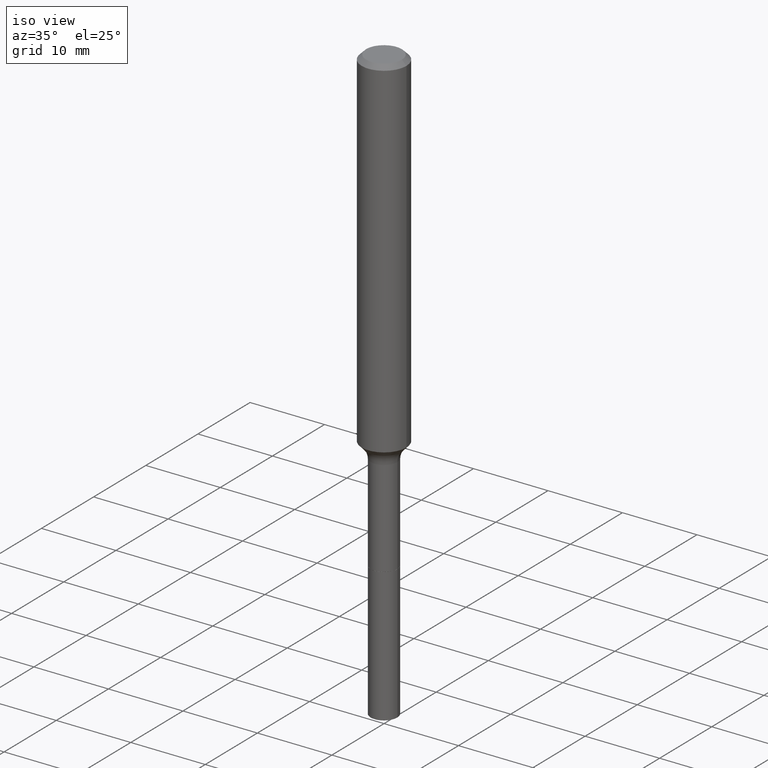
[diagram: clean part render]
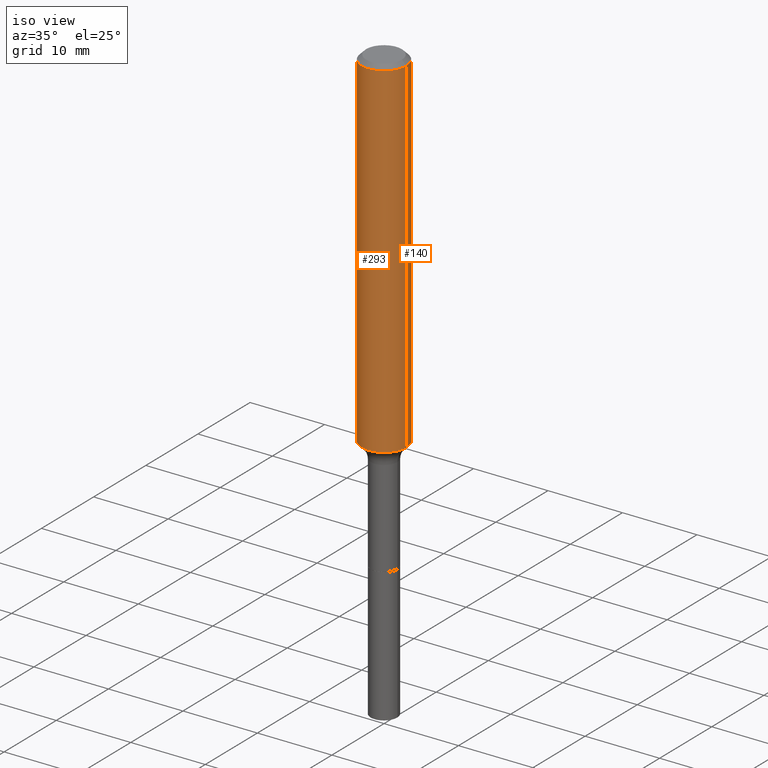
[diagram: same view with one multi-face feature highlighted, each face labeled with its STEP entity id]
A machine part, iso view. The highlighted faces form ONE feature: a constant-radius fillet chain: 2 tangent blend faces with common blend radius 2.9997 mm. The faces share edges in the B-rep.
Their STEP definitions:
[1] entity #293 (Cylinder):
#7 = EDGE_CURVE ( 'NONE', #45, #402, #39, .T. ) ;
#28 = DIRECTION ( 'NONE',  ( 1.000000000000000000, -6.982962677686266711E-15, 4.876176775795935793E-29 ) ) ;
#39 = CIRCLE ( 'NONE', #396, 0.1181000000000002187 ) ;
#45 = VERTEX_POINT ( 'NONE', #390 ) ;
#46 = CARTESIAN_POINT ( 'NONE',  ( 0.1181000000000001077, -8.246878922347488542E-16, 5.758764772215005345E-30 ) ) ;
#81 = CARTESIAN_POINT ( 'NONE',  ( -0.1180999999999999966, -2.426166063791637910E-15, -0.02362000000000014435 ) ) ;
#88 = ORIENTED_EDGE ( 'NONE', *, *, #7, .T. ) ;
#90 = CARTESIAN_POINT ( 'NONE',  ( 4.516360111820457687E-29, -6.448165280225159912E-15, -1.846827937611624559 ) ) ;
#91 = EDGE_LOOP ( 'NONE', ( #201, #88, #252, #487 ) ) ;
#110 = VECTOR ( 'NONE', #471, 39.37007874015748143 ) ;
#114 = CARTESIAN_POINT ( 'NONE',  ( -0.1181000000000001077, 8.391509709326790846E-16, -5.809262341591049389E-30 ) ) ;
#133 = CARTESIAN_POINT ( 'NONE',  ( 5.776197320209328408E-31, -8.246878922347560526E-17, -0.02362000000000014435 ) ) ;
#146 = DIRECTION ( 'NONE',  ( 1.000000000000000000, -6.982962677686266711E-15, 0.000000000000000000 ) ) ;
#148 = EDGE_CURVE ( 'NONE', #418, #463, #172, .T. ) ;
#172 = CIRCLE ( 'NONE', #213, 0.1180999999999999966 ) ;
#178 = CARTESIAN_POINT ( 'NONE',  ( 0.000000000000000000, 0.000000000000000000, 0.000000000000000000 ) ) ;
#201 = ORIENTED_EDGE ( 'NONE', *, *, #313, .F. ) ;
#207 = DIRECTION ( 'NONE',  ( 1.000000000000000000, -6.982962677686267499E-15, 0.000000000000000000 ) ) ;
#213 = AXIS2_PLACEMENT_3D ( 'NONE', #133, #301, #146 ) ;
#222 = FACE_OUTER_BOUND ( 'NONE', #91, .T. ) ;
#228 = DIRECTION ( 'NONE',  ( -2.445468806185136597E-29, 3.491481338843145583E-15, 1.000000000000000000 ) ) ;
#233 = LINE ( 'NONE', #114, #110 ) ;
#252 = ORIENTED_EDGE ( 'NONE', *, *, #386, .T. ) ;
#292 = VECTOR ( 'NONE', #339, 39.37007874015748143 ) ;
#293 = ADVANCED_FACE ( 'NONE', ( #222 ), #374, .T. ) ;
#301 = DIRECTION ( 'NONE',  ( -2.445468806185136597E-29, 3.491481338843145583E-15, 1.000000000000000000 ) ) ;
#313 = EDGE_CURVE ( 'NONE', #45, #418, #233, .T. ) ;
#337 = AXIS2_PLACEMENT_3D ( 'NONE', #178, #228, #28 ) ;
#339 = DIRECTION ( 'NONE',  ( -2.445468806185136877E-29, 3.491481338843145188E-15, 1.000000000000000000 ) ) ;
#359 = CARTESIAN_POINT ( 'NONE',  ( 0.1180999999999999966, -9.071566814582237199E-16, -0.02362000000000014435 ) ) ;
#374 = CYLINDRICAL_SURFACE ( 'NONE', #337, 0.1181000000000001077 ) ;
#386 = EDGE_CURVE ( 'NONE', #402, #463, #470, .T. ) ;
#390 = CARTESIAN_POINT ( 'NONE',  ( -0.1181000000000002187, -5.609014309292480926E-15, -1.846827937611624559 ) ) ;
#396 = AXIS2_PLACEMENT_3D ( 'NONE', #90, #435, #207 ) ;
#402 = VERTEX_POINT ( 'NONE', #506 ) ;
#418 = VERTEX_POINT ( 'NONE', #81 ) ;
#435 = DIRECTION ( 'NONE',  ( -2.445468806185136597E-29, 3.491481338843145583E-15, 1.000000000000000000 ) ) ;
#463 = VERTEX_POINT ( 'NONE', #359 ) ;
#470 = LINE ( 'NONE', #46, #292 ) ;
#471 = DIRECTION ( 'NONE',  ( -2.445468806185136877E-29, 3.491481338843145188E-15, 1.000000000000000000 ) ) ;
#487 = ORIENTED_EDGE ( 'NONE', *, *, #148, .F. ) ;
#506 = CARTESIAN_POINT ( 'NONE',  ( 0.1181000000000002187, -7.272853172459910541E-15, -1.846827937611624559 ) ) ;
[2] entity #140 (Cylinder):
#14 = EDGE_CURVE ( 'NONE', #402, #45, #245, .T. ) ;
#15 = ORIENTED_EDGE ( 'NONE', *, *, #386, .F. ) ;
#27 = AXIS2_PLACEMENT_3D ( 'NONE', #468, #108, #410 ) ;
#45 = VERTEX_POINT ( 'NONE', #390 ) ;
#46 = CARTESIAN_POINT ( 'NONE',  ( 0.1181000000000001077, -8.246878922347488542E-16, 5.758764772215005345E-30 ) ) ;
#81 = CARTESIAN_POINT ( 'NONE',  ( -0.1180999999999999966, -2.426166063791637910E-15, -0.02362000000000014435 ) ) ;
#84 = CYLINDRICAL_SURFACE ( 'NONE', #462, 0.1181000000000001077 ) ;
#108 = DIRECTION ( 'NONE',  ( -2.445468806185136597E-29, 3.491481338843145583E-15, 1.000000000000000000 ) ) ;
#110 = VECTOR ( 'NONE', #471, 39.37007874015748143 ) ;
#114 = CARTESIAN_POINT ( 'NONE',  ( -0.1181000000000001077, 8.391509709326790846E-16, -5.809262341591049389E-30 ) ) ;
#136 = DIRECTION ( 'NONE',  ( 1.000000000000000000, -6.982962677686266711E-15, 4.876176775795935793E-29 ) ) ;
#140 = ADVANCED_FACE ( 'NONE', ( #283 ), #84, .T. ) ;
#145 = CIRCLE ( 'NONE', #27, 0.1180999999999999966 ) ;
#162 = EDGE_LOOP ( 'NONE', ( #268, #395, #467, #15 ) ) ;
#233 = LINE ( 'NONE', #114, #110 ) ;
#241 = DIRECTION ( 'NONE',  ( 1.000000000000000000, -6.982962677686267499E-15, 0.000000000000000000 ) ) ;
#243 = CARTESIAN_POINT ( 'NONE',  ( 0.000000000000000000, 0.000000000000000000, 0.000000000000000000 ) ) ;
#245 = CIRCLE ( 'NONE', #316, 0.1181000000000002187 ) ;
#268 = ORIENTED_EDGE ( 'NONE', *, *, #14, .T. ) ;
#273 = EDGE_CURVE ( 'NONE', #463, #418, #145, .T. ) ;
#283 = FACE_OUTER_BOUND ( 'NONE', #162, .T. ) ;
#292 = VECTOR ( 'NONE', #339, 39.37007874015748143 ) ;
#313 = EDGE_CURVE ( 'NONE', #45, #418, #233, .T. ) ;
#316 = AXIS2_PLACEMENT_3D ( 'NONE', #363, #517, #241 ) ;
#339 = DIRECTION ( 'NONE',  ( -2.445468806185136877E-29, 3.491481338843145188E-15, 1.000000000000000000 ) ) ;
#359 = CARTESIAN_POINT ( 'NONE',  ( 0.1180999999999999966, -9.071566814582237199E-16, -0.02362000000000014435 ) ) ;
#363 = CARTESIAN_POINT ( 'NONE',  ( 4.516360111820457687E-29, -6.448165280225159912E-15, -1.846827937611624559 ) ) ;
#386 = EDGE_CURVE ( 'NONE', #402, #463, #470, .T. ) ;
#390 = CARTESIAN_POINT ( 'NONE',  ( -0.1181000000000002187, -5.609014309292480926E-15, -1.846827937611624559 ) ) ;
#395 = ORIENTED_EDGE ( 'NONE', *, *, #313, .T. ) ;
#402 = VERTEX_POINT ( 'NONE', #506 ) ;
#410 = DIRECTION ( 'NONE',  ( 1.000000000000000000, -6.982962677686266711E-15, 0.000000000000000000 ) ) ;
#418 = VERTEX_POINT ( 'NONE', #81 ) ;
#424 = DIRECTION ( 'NONE',  ( -2.445468806185136597E-29, 3.491481338843145583E-15, 1.000000000000000000 ) ) ;
#462 = AXIS2_PLACEMENT_3D ( 'NONE', #243, #424, #136 ) ;
#463 = VERTEX_POINT ( 'NONE', #359 ) ;
#467 = ORIENTED_EDGE ( 'NONE', *, *, #273, .F. ) ;
#468 = CARTESIAN_POINT ( 'NONE',  ( 5.776197320209328408E-31, -8.246878922347560526E-17, -0.02362000000000014435 ) ) ;
#470 = LINE ( 'NONE', #46, #292 ) ;
#471 = DIRECTION ( 'NONE',  ( -2.445468806185136877E-29, 3.491481338843145188E-15, 1.000000000000000000 ) ) ;
#506 = CARTESIAN_POINT ( 'NONE',  ( 0.1181000000000002187, -7.272853172459910541E-15, -1.846827937611624559 ) ) ;
#517 = DIRECTION ( 'NONE',  ( -2.445468806185136597E-29, 3.491481338843145583E-15, 1.000000000000000000 ) ) ;